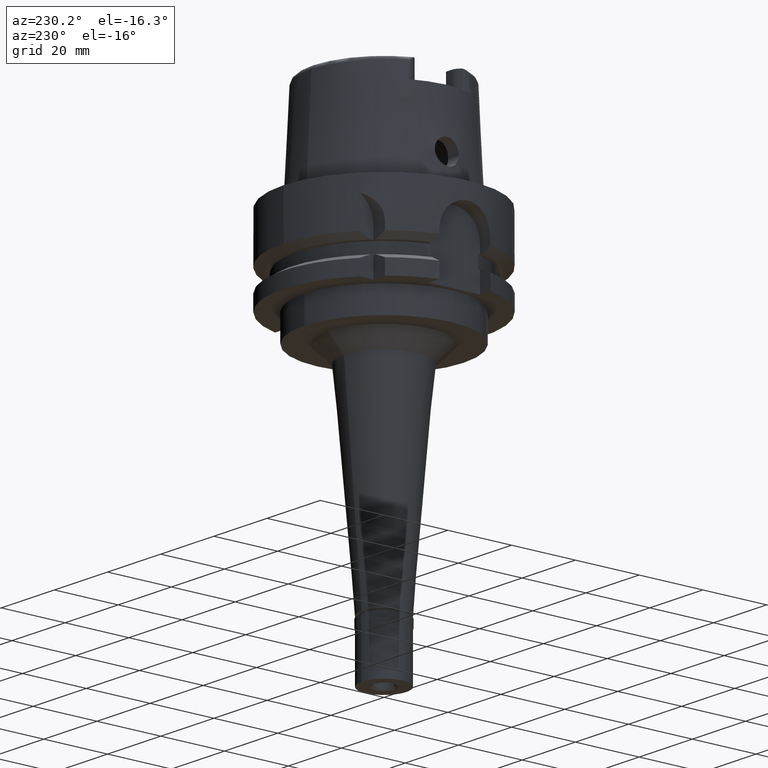
[diagram: clean part render]
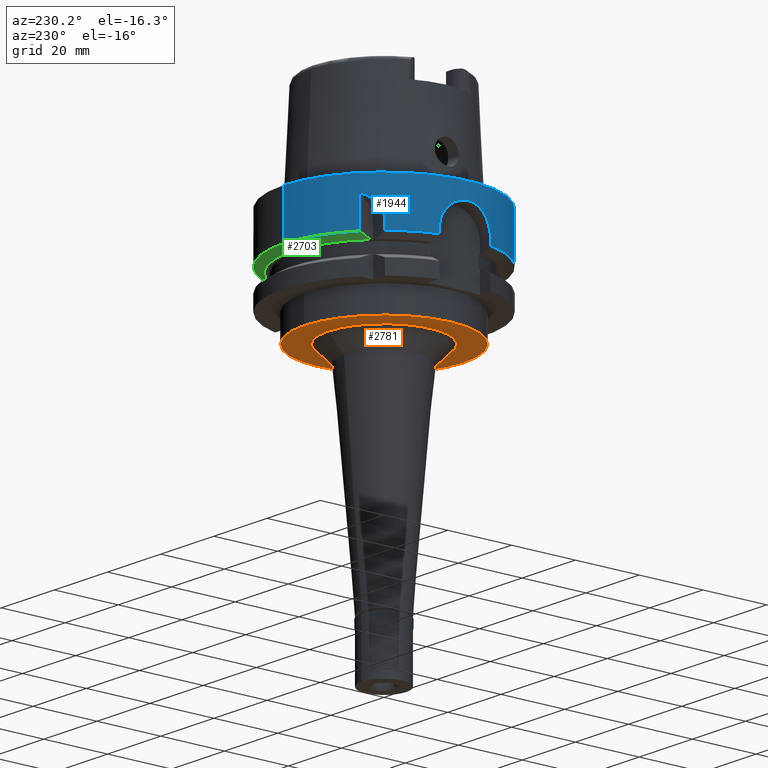
[diagram: same view with three faces highlighted in distinct colors, each labeled with its STEP entity id]
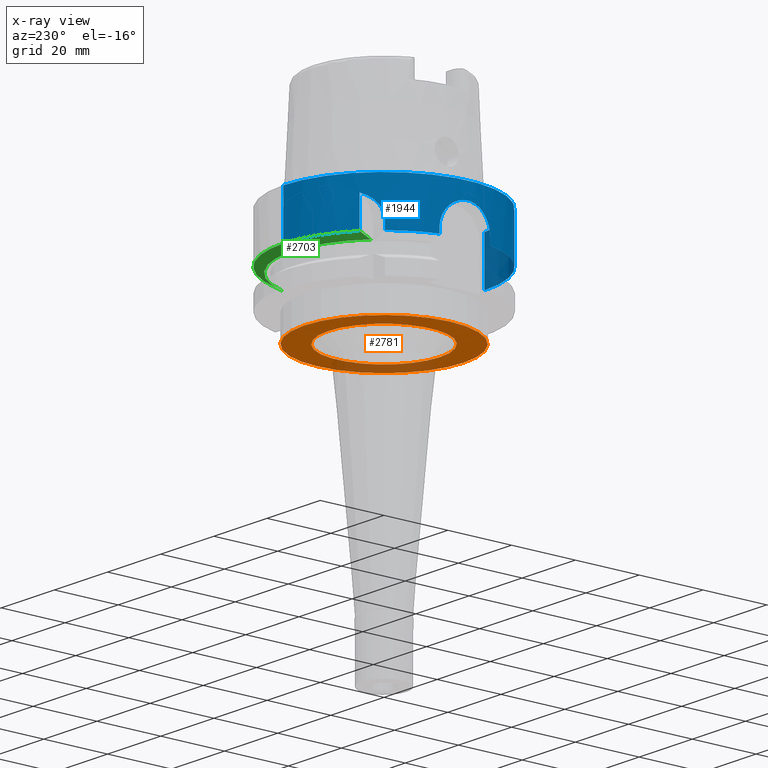
[diagram: x-ray of the same camera — body ghosted, the three highlighted faces saturated]
A machine part, auxiliary view with three faces highlighted in distinct colors.
The next image is the same camera in x-ray (body ghosted, the three faces saturated) — at least one of them is partly hidden behind the body in this view.
Their STEP definitions:

[orange] entity #2781 — the highlighted planar face has unit normal (0, 0, -1).
#331 = FACE_OUTER_BOUND ( 'NONE', #3352, .T. ) ;
#545 = AXIS2_PLACEMENT_3D ( 'NONE', #1594, #795, #689 ) ;
#689 = DIRECTION ( 'NONE',  ( 0.0000000000000000000, -1.000000000000000000, 0.0000000000000000000 ) ) ;
#795 = DIRECTION ( 'NONE',  ( 0.0000000000000000000, 0.0000000000000000000, -1.000000000000000000 ) ) ;
#1017 = CARTESIAN_POINT ( 'NONE',  ( 0.0000000000000000000, -17.53803240119000151, -34.00000000000000000 ) ) ;
#1162 = DIRECTION ( 'NONE',  ( 0.0000000000000000000, -1.000000000000000000, 0.0000000000000000000 ) ) ;
#1231 = DIRECTION ( 'NONE',  ( 0.0000000000000000000, 1.000000000000000000, 0.0000000000000000000 ) ) ;
#1403 = CARTESIAN_POINT ( 'NONE',  ( 0.0000000000000000000, 0.0000000000000000000, -34.00000000000000000 ) ) ;
#1435 = DIRECTION ( 'NONE',  ( 0.0000000000000000000, 1.000000000000000000, 0.0000000000000000000 ) ) ;
#1439 = CIRCLE ( 'NONE', #3635, 17.53803240119000151 ) ;
#1464 = VERTEX_POINT ( 'NONE', #2295 ) ;
#1515 = ORIENTED_EDGE ( 'NONE', *, *, #2282, .F. ) ;
#1540 = FACE_BOUND ( 'NONE', #2546, .T. ) ;
#1594 = CARTESIAN_POINT ( 'NONE',  ( 0.0000000000000000000, 0.0000000000000000000, -34.00000000000000000 ) ) ;
#1721 = DIRECTION ( 'NONE',  ( 0.0000000000000000000, 0.0000000000000000000, -1.000000000000000000 ) ) ;
#1782 = CARTESIAN_POINT ( 'NONE',  ( 0.0000000000000000000, 17.53803240119000151, -34.00000000000000000 ) ) ;
#1925 = ORIENTED_EDGE ( 'NONE', *, *, #4647, .F. ) ;
#2045 = CIRCLE ( 'NONE', #4223, 25.00000000000000000 ) ;
#2067 = CARTESIAN_POINT ( 'NONE',  ( 0.0000000000000000000, 0.0000000000000000000, -34.00000000000000000 ) ) ;
#2282 = EDGE_CURVE ( 'NONE', #1464, #2468, #2045, .T. ) ;
#2295 = CARTESIAN_POINT ( 'NONE',  ( 0.0000000000000000000, 25.00000000000000000, -34.00000000000000000 ) ) ;
#2328 = DIRECTION ( 'NONE',  ( 0.0000000000000000000, 0.0000000000000000000, -1.000000000000000000 ) ) ;
#2358 = VERTEX_POINT ( 'NONE', #1017 ) ;
#2468 = VERTEX_POINT ( 'NONE', #4573 ) ;
#2491 = AXIS2_PLACEMENT_3D ( 'NONE', #5259, #2328, #5369 ) ;
#2546 = EDGE_LOOP ( 'NONE', ( #2991, #3438 ) ) ;
#2549 = CIRCLE ( 'NONE', #545, 17.53803240119000151 ) ;
#2725 = AXIS2_PLACEMENT_3D ( 'NONE', #2067, #2987, #1162 ) ;
#2781 = ADVANCED_FACE ( 'NONE', ( #331, #1540 ), #5290, .T. ) ;
#2987 = DIRECTION ( 'NONE',  ( 0.0000000000000000000, 0.0000000000000000000, 1.000000000000000000 ) ) ;
#2991 = ORIENTED_EDGE ( 'NONE', *, *, #5299, .F. ) ;
#3352 = EDGE_LOOP ( 'NONE', ( #1515, #1925 ) ) ;
#3438 = ORIENTED_EDGE ( 'NONE', *, *, #5182, .F. ) ;
#3635 = AXIS2_PLACEMENT_3D ( 'NONE', #4977, #1721, #1231 ) ;
#3833 = DIRECTION ( 'NONE',  ( 0.0000000000000000000, 0.0000000000000000000, 1.000000000000000000 ) ) ;
#4223 = AXIS2_PLACEMENT_3D ( 'NONE', #1403, #3833, #1435 ) ;
#4573 = CARTESIAN_POINT ( 'NONE',  ( 0.0000000000000000000, -25.00000000000000000, -34.00000000000000000 ) ) ;
#4647 = EDGE_CURVE ( 'NONE', #2468, #1464, #5264, .T. ) ;
#4768 = VERTEX_POINT ( 'NONE', #1782 ) ;
#4977 = CARTESIAN_POINT ( 'NONE',  ( 0.0000000000000000000, 0.0000000000000000000, -34.00000000000000000 ) ) ;
#5182 = EDGE_CURVE ( 'NONE', #2358, #4768, #2549, .T. ) ;
#5259 = CARTESIAN_POINT ( 'NONE',  ( 0.0000000000000000000, 0.0000000000000000000, -34.00000000000000000 ) ) ;
#5264 = CIRCLE ( 'NONE', #2725, 25.00000000000000000 ) ;
#5290 = PLANE ( 'NONE',  #2491 ) ;
#5299 = EDGE_CURVE ( 'NONE', #4768, #2358, #1439, .T. ) ;
#5369 = DIRECTION ( 'NONE',  ( 0.0000000000000000000, -1.000000000000000000, 0.0000000000000000000 ) ) ;

[blue] entity #1944 — the highlighted cylindrical surface (partial cylindrical patch) has radius 31.5 mm, axis along (0, 0, -1).
#1 = CARTESIAN_POINT ( 'NONE',  ( -30.72483155825069545, -6.946269950277046412, -9.022706119297225769 ) ) ;
#26 = CARTESIAN_POINT ( 'NONE',  ( -24.23753001126512174, 20.11956907575455489, -10.72284691296700032 ) ) ;
#28 = CARTESIAN_POINT ( 'NONE',  ( -31.44943655644335223, -1.802450746067341569, -5.201311858322218207 ) ) ;
#54 = CARTESIAN_POINT ( 'NONE',  ( -20.00000000000000000, 24.33618704727999926, -5.000000000001000089 ) ) ;
#67 = EDGE_CURVE ( 'NONE', #3012, #508, #400, .T. ) ;
#78 = CARTESIAN_POINT ( 'NONE',  ( -23.93462317068893697, 20.47973321466801622, -9.360190639014227543 ) ) ;
#80 = CARTESIAN_POINT ( 'NONE',  ( -31.50002100011951711, 0.5183543065428579677, -4.999920277912010214 ) ) ;
#107 = VECTOR ( 'NONE', #2838, 999.9999999999998863 ) ;
#164 = VERTEX_POINT ( 'NONE', #5263 ) ;
#213 = CARTESIAN_POINT ( 'NONE',  ( -19.99999697632999940, 24.33618953219000147, -14.62251175975000095 ) ) ;
#316 = ORIENTED_EDGE ( 'NONE', *, *, #2440, .F. ) ;
#325 = CARTESIAN_POINT ( 'NONE',  ( 0.0000000000000000000, -31.50000000000000000, -5.210646728906999149E-14 ) ) ;
#377 = EDGE_CURVE ( 'NONE', #4577, #1029, #3528, .T. ) ;
#385 = CARTESIAN_POINT ( 'NONE',  ( -24.17234589818387747, 20.19776354161694343, -10.34020174442617090 ) ) ;
#387 = CARTESIAN_POINT ( 'NONE',  ( -31.21790416627743170, -4.212168745824432570, -6.193629089177133729 ) ) ;
#400 = LINE ( 'NONE', #1242, #107 ) ;
#418 = CARTESIAN_POINT ( 'NONE',  ( -23.53697928891532243, 20.93484618184170998, -8.357120637937539342 ) ) ;
#438 = CARTESIAN_POINT ( 'NONE',  ( -23.47125034811351796, 21.00840780329316004, -8.223145025955297172 ) ) ;
#439 = DIRECTION ( 'NONE',  ( 0.0000000000000000000, -1.000000000000000000, 0.0000000000000000000 ) ) ;
#440 = CARTESIAN_POINT ( 'NONE',  ( -30.66816234189937873, -7.192340305902117592, -9.487104355944319778 ) ) ;
#463 = CARTESIAN_POINT ( 'NONE',  ( -22.12366025526768354, 22.42305592483758758, -6.376051744762732731 ) ) ;
#468 = CARTESIAN_POINT ( 'NONE',  ( -31.30320154335445437, -3.523371583985439592, -5.812781820826476320 ) ) ;
#499 = B_SPLINE_CURVE_WITH_KNOTS ( 'NONE', 3,
 ( #3815, #4234, #1328, #3312, #26, #4204, #385, #3841, #876, #4180, #4597, #78, #1256, #2155, #1744, #418, #438, #2489, #3421, #1646, #2098, #3008, #3787, #3738, #2977, #5399, #3762, #1694, #1303, #463, #2127, #2538, #4642, #54 ),
 .UNSPECIFIED., .F., .F.,
 ( 4, 2, 2, 1, 2, 2, 2, 2, 1, 1, 2, 2, 2, 2, 1, 1, 1, 2, 2, 4 ),
 ( 0.0000000000000000000, 0.1250000000000013323, 0.1875000000000020539, 0.2187500000000027200, 0.2343750000000029976, 0.2500000000000032752, 0.3750000000000079936, 0.4375000000000103806, 0.4687500000000118239, 0.4843750000000132672, 0.4921875000000139888, 0.5000000000000146549, 0.6250000000000150990, 0.6875000000000156541, 0.7187500000000155431, 0.7343750000000155431, 0.7421875000000148770, 0.7460937500000146549, 0.7500000000000143219, 1.000000000000000000 ),
 .UNSPECIFIED. ) ;
#508 = VERTEX_POINT ( 'NONE', #213 ) ;
#510 = EDGE_CURVE ( 'NONE', #4577, #2782, #709, .T. ) ;
#677 = ORIENTED_EDGE ( 'NONE', *, *, #5293, .F. ) ;
#709 = LINE ( 'NONE', #325, #4827 ) ;
#726 = CARTESIAN_POINT ( 'NONE',  ( 0.0000000000000000000, -31.50000000000000000, -8.526512829120999020E-14 ) ) ;
#797 = CARTESIAN_POINT ( 'NONE',  ( -31.44964500274732799, 1.798614268532662708, -5.200476479076213465 ) ) ;
#798 = VERTEX_POINT ( 'NONE', #1135 ) ;
#805 = ORIENTED_EDGE ( 'NONE', *, *, #3286, .T. ) ;
#812 = DIRECTION ( 'NONE',  ( -0.7725773665802099233, 0.6349206349206079070, 0.0000000000000000000 ) ) ;
#826 = CARTESIAN_POINT ( 'NONE',  ( -30.66612576030093251, 7.202839950165904170, -9.479090569724965221 ) ) ;
#867 = EDGE_CURVE ( 'NONE', #5312, #3417, #3531, .T. ) ;
#876 = CARTESIAN_POINT ( 'NONE',  ( -24.12918344492736367, 20.24926407739598133, -10.12980356193080489 ) ) ;
#878 = CARTESIAN_POINT ( 'NONE',  ( -31.32955008595411073, 3.281533105401744255, -5.699304970571102302 ) ) ;
#903 = CARTESIAN_POINT ( 'NONE',  ( 0.0000000000000000000, 0.0000000000000000000, -8.526512829120999020E-14 ) ) ;
#912 = ORIENTED_EDGE ( 'NONE', *, *, #67, .F. ) ;
#935 = B_SPLINE_CURVE_WITH_KNOTS ( 'NONE', 3,
 ( #1531, #4865, #4889, #1139 ),
 .UNSPECIFIED., .F., .F.,
 ( 4, 4 ),
 ( 0.0000000000000000000, 1.000000000000000000 ),
 .UNSPECIFIED. ) ;
#1008 = CARTESIAN_POINT ( 'NONE',  ( 0.0000000000000000000, 0.0000000000000000000, -14.62250092523999889 ) ) ;
#1029 = VERTEX_POINT ( 'NONE', #4250 ) ;
#1135 = CARTESIAN_POINT ( 'NONE',  ( -30.46719547316000032, -8.000000000000000000, -13.00000000000000000 ) ) ;
#1139 = CARTESIAN_POINT ( 'NONE',  ( -24.33618704727999926, 20.00000000000000000, -12.11171390365999834 ) ) ;
#1210 = CARTESIAN_POINT ( 'NONE',  ( -31.49998946125950283, -0.2610890447922726842, -5.000040013349805079 ) ) ;
#1226 = CARTESIAN_POINT ( 'NONE',  ( -20.00000000000000000, 24.33618704727999926, -5.000000000001000089 ) ) ;
#1233 = CARTESIAN_POINT ( 'NONE',  ( -31.48717848547035558, 1.033599229551413146, -5.050029380088618680 ) ) ;
#1242 = CARTESIAN_POINT ( 'NONE',  ( -20.00000000000000000, 24.33618704727999926, -5.000000000001000089 ) ) ;
#1256 = CARTESIAN_POINT ( 'NONE',  ( -23.75778790263211704, 20.68403234665486679, -8.870118541061319917 ) ) ;
#1258 = CARTESIAN_POINT ( 'NONE',  ( -31.32914844624422912, -3.285491324276280434, -5.701012613330099121 ) ) ;
#1286 = CARTESIAN_POINT ( 'NONE',  ( -30.46719547316000032, 8.000000000000000000, -13.00000000000000000 ) ) ;
#1303 = CARTESIAN_POINT ( 'NONE',  ( -22.13991544953643498, 22.40700657288450515, -6.391700779309858582 ) ) ;
#1305 = CARTESIAN_POINT ( 'NONE',  ( -31.24776779275517313, 3.985172040082493261, -6.058247812276612798 ) ) ;
#1328 = CARTESIAN_POINT ( 'NONE',  ( -24.31739523089621002, 20.02302527965778722, -11.41233509681581815 ) ) ;
#1331 = CARTESIAN_POINT ( 'NONE',  ( -30.46719547316397936, -8.000000000001037392, -12.48366497254986562 ) ) ;
#1333 = DIRECTION ( 'NONE',  ( 0.0000000000000000000, 0.0000000000000000000, 1.000000000000000000 ) ) ;
#1365 = DIRECTION ( 'NONE',  ( 0.0000000000000000000, 0.0000000000000000000, 1.000000000000000000 ) ) ;
#1396 = EDGE_CURVE ( 'NONE', #2737, #798, #2669, .T. ) ;
#1405 = AXIS2_PLACEMENT_3D ( 'NONE', #1008, #1333, #3427 ) ;
#1409 = VECTOR ( 'NONE', #3166, 1000.000000000000000 ) ;
#1531 = CARTESIAN_POINT ( 'NONE',  ( -24.33618704727999926, 20.00000000000000000, -14.62250092523999889 ) ) ;
#1537 = CARTESIAN_POINT ( 'NONE',  ( 0.0000000000000000000, 0.0000000000000000000, 39.39999999999999858 ) ) ;
#1591 = CARTESIAN_POINT ( 'NONE',  ( 0.0000000000000000000, -31.50000000000000000, -14.62250092523999889 ) ) ;
#1621 = DIRECTION ( 'NONE',  ( 0.0000000000000000000, 0.0000000000000000000, -1.000000000000000000 ) ) ;
#1646 = CARTESIAN_POINT ( 'NONE',  ( -23.41400022917423129, 21.07216357215338931, -8.111009435841912918 ) ) ;
#1677 = EDGE_CURVE ( 'NONE', #1029, #4436, #5128, .T. ) ;
#1694 = CARTESIAN_POINT ( 'NONE',  ( -22.16423158446879071, 22.38297235167951271, -6.415234207678366829 ) ) ;
#1696 = CARTESIAN_POINT ( 'NONE',  ( -31.39729489286607134, -2.553889672865666594, -5.414060923261826197 ) ) ;
#1723 = CARTESIAN_POINT ( 'NONE',  ( -30.56960750178896546, 7.602056937491735056, -10.45357543552803925 ) ) ;
#1744 = CARTESIAN_POINT ( 'NONE',  ( -23.59051908677695053, 20.87444277641226620, -8.473838200759930217 ) ) ;
#1899 = ORIENTED_EDGE ( 'NONE', *, *, #867, .T. ) ;
#1910 = ORIENTED_EDGE ( 'NONE', *, *, #1396, .T. ) ;
#1944 = ADVANCED_FACE ( 'NONE', ( #3228 ), #3594, .T. ) ;
#1989 = CARTESIAN_POINT ( 'NONE',  ( -30.46719547317000121, -8.000000000001000089, -14.62250092523999889 ) ) ;
#2056 = CARTESIAN_POINT ( 'NONE',  ( -31.05604176497505620, -5.283827535505823292, -6.969819447039931504 ) ) ;
#2081 = CARTESIAN_POINT ( 'NONE',  ( -30.46719547316000032, 8.000000000000000000, -13.00000000000000000 ) ) ;
#2098 = CARTESIAN_POINT ( 'NONE',  ( -23.23284736681642215, 21.27324808141024448, -7.765153891517261542 ) ) ;
#2127 = CARTESIAN_POINT ( 'NONE',  ( -22.11655647624622034, 22.43006331217025462, -6.369243627175960931 ) ) ;
#2129 = CARTESIAN_POINT ( 'NONE',  ( -30.53176800461628915, 7.750603225394222306, -10.95042959222703338 ) ) ;
#2134 = LINE ( 'NONE', #1286, #4318 ) ;
#2155 = CARTESIAN_POINT ( 'NONE',  ( -23.69386629016121759, 20.75728041269172408, -8.709680028884937641 ) ) ;
#2157 = CARTESIAN_POINT ( 'NONE',  ( -31.12268002446700166, 4.865361700270676160, -6.643976467977301681 ) ) ;
#2218 = CARTESIAN_POINT ( 'NONE',  ( 0.0000000000000000000, 0.0000000000000000000, -14.62250092523999889 ) ) ;
#2339 = ORIENTED_EDGE ( 'NONE', *, *, #1677, .T. ) ;
#2373 = DIRECTION ( 'NONE',  ( 0.0000000000000000000, -2.672583210396999878E-14, -1.000000000000000000 ) ) ;
#2440 = EDGE_CURVE ( 'NONE', #2737, #3417, #2134, .T. ) ;
#2466 = CARTESIAN_POINT ( 'NONE',  ( -31.43386973690861907, -2.055313215503514535, -5.264061257064023280 ) ) ;
#2489 = CARTESIAN_POINT ( 'NONE',  ( -23.44238097849204294, 21.04058588167673349, -8.166206343342777174 ) ) ;
#2492 = CARTESIAN_POINT ( 'NONE',  ( -31.15549056210424084, 4.651323882732147474, -6.485818970015399643 ) ) ;
#2518 = CARTESIAN_POINT ( 'NONE',  ( -30.49308265053237932, 7.900923201063404733, -11.71820757452263528 ) ) ;
#2538 = CARTESIAN_POINT ( 'NONE',  ( -21.51738181457591281, 23.02037130602226611, -5.798477891085415337 ) ) ;
#2541 = CARTESIAN_POINT ( 'NONE',  ( -31.43402543387415449, 2.052934319775750804, -5.263432369681109613 ) ) ;
#2572 = CARTESIAN_POINT ( 'NONE',  ( -31.49676444061545055, -0.5197807615661762526, -5.012627701956126280 ) ) ;
#2669 = B_SPLINE_CURVE_WITH_KNOTS ( 'NONE', 3,
 ( #2081, #3397, #5401, #4599, #2518, #2129, #1723, #826, #4182, #3843, #3342, #4542, #5056, #2157, #2492, #5007, #1305, #2955, #878, #3791, #4645, #2541, #797, #1233, #80, #1210, #2572, #4237, #3315, #28, #2466, #1696, #4135, #1258, #468, #4208, #387, #3764, #2056, #3741, #4980, #4164, #1, #440, #4377, #3037, #4698, #5169, #5118, #3061, #1331, #2711 ),
 .UNSPECIFIED., .F., .F.,
 ( 4, 2, 2, 2, 2, 2, 2, 2, 2, 2, 2, 2, 2, 2, 2, 2, 2, 2, 2, 2, 2, 2, 2, 2, 2, 4 ),
 ( 0.0000000000000000000, 0.03124999999999986122, 0.06249999999999972244, 0.1249999999999996947, 0.1874999999999996669, 0.2499999999999996669, 0.2812499999999996114, 0.3124999999999996114, 0.3437499999999995559, 0.3749999999999995559, 0.4062499999999995004, 0.4374999999999995004, 0.4999999999999995559, 0.5312499999999995559, 0.5624999999999994449, 0.5937499999999994449, 0.6249999999999994449, 0.6562499999999994449, 0.6874999999999993339, 0.7499999999999994449, 0.8124999999999995559, 0.8437499999999997780, 0.8749999999999998890, 0.9062500000000000000, 0.9375000000000000000, 1.000000000000000000 ),
 .UNSPECIFIED. ) ;
#2696 = DIRECTION ( 'NONE',  ( 0.0000000000000000000, 2.672583210396999878E-14, -1.000000000000000000 ) ) ;
#2711 = CARTESIAN_POINT ( 'NONE',  ( -30.46719547316000032, -8.000000000000000000, -13.00000000000000000 ) ) ;
#2737 = VERTEX_POINT ( 'NONE', #4381 ) ;
#2751 = ORIENTED_EDGE ( 'NONE', *, *, #510, .F. ) ;
#2782 = VERTEX_POINT ( 'NONE', #1591 ) ;
#2838 = DIRECTION ( 'NONE',  ( 3.142283928301055950E-07, 2.582394104988045658E-07, -0.9999999999999173994 ) ) ;
#2839 = AXIS2_PLACEMENT_3D ( 'NONE', #1537, #4076, #4047 ) ;
#2845 = LINE ( 'NONE', #4402, #1409 ) ;
#2955 = CARTESIAN_POINT ( 'NONE',  ( -31.30344405296870391, 3.521218346206436589, -5.811727508870458969 ) ) ;
#2977 = CARTESIAN_POINT ( 'NONE',  ( -22.42284375811699704, 22.12406357859635264, -6.682017531165148405 ) ) ;
#3008 = CARTESIAN_POINT ( 'NONE',  ( -23.03959847984106091, 21.48321097298170912, -7.456987173025647841 ) ) ;
#3012 = VERTEX_POINT ( 'NONE', #1226 ) ;
#3037 = CARTESIAN_POINT ( 'NONE',  ( -30.59362501649805566, -7.502702388007870482, -10.21124545936433314 ) ) ;
#3061 = CARTESIAN_POINT ( 'NONE',  ( -30.48033687866831087, -7.950445081598332742, -11.97165006927280295 ) ) ;
#3070 = CARTESIAN_POINT ( 'NONE',  ( 0.0000000000000000000, 31.50000000000000000, -5.210646728906999149E-14 ) ) ;
#3071 = CIRCLE ( 'NONE', #3949, 31.50000000000000000 ) ;
#3138 = EDGE_CURVE ( 'NONE', #3185, #798, #2845, .T. ) ;
#3166 = DIRECTION ( 'NONE',  ( 1.610060873201991573E-08, -6.131326025772977676E-08, 0.9999999999999980016 ) ) ;
#3185 = VERTEX_POINT ( 'NONE', #1989 ) ;
#3228 = FACE_OUTER_BOUND ( 'NONE', #4686, .T. ) ;
#3286 = EDGE_CURVE ( 'NONE', #4436, #508, #3071, .T. ) ;
#3307 = EDGE_CURVE ( 'NONE', #3185, #2782, #5260, .T. ) ;
#3312 = CARTESIAN_POINT ( 'NONE',  ( -24.26101978174484941, 20.09122936993650654, -10.89447883098276826 ) ) ;
#3315 = CARTESIAN_POINT ( 'NONE',  ( -31.47463384889278259, -1.289694726626426924, -5.100313929552778625 ) ) ;
#3342 = CARTESIAN_POINT ( 'NONE',  ( -30.91892016395161491, 6.034600876831913929, -7.721352522286640152 ) ) ;
#3356 = DIRECTION ( 'NONE',  ( 0.0000000000000000000, 0.0000000000000000000, 1.000000000000000000 ) ) ;
#3397 = CARTESIAN_POINT ( 'NONE',  ( -30.46719547316398646, 8.000000000001030287, -12.74157926336300584 ) ) ;
#3417 = VERTEX_POINT ( 'NONE', #5038 ) ;
#3421 = CARTESIAN_POINT ( 'NONE',  ( -23.42297921573026542, 21.06218155782124057, -8.128354763160377416 ) ) ;
#3427 = DIRECTION ( 'NONE',  ( -0.9672125547036138915, -0.2539682539683034701, 0.0000000000000000000 ) ) ;
#3528 = CIRCLE ( 'NONE', #4206, 31.50000000000000000 ) ;
#3531 = CIRCLE ( 'NONE', #3709, 31.50000000000000711 ) ;
#3594 = CYLINDRICAL_SURFACE ( 'NONE', #2839, 31.50000000000000000 ) ;
#3668 = CARTESIAN_POINT ( 'NONE',  ( 0.0000000000000000000, 0.0000000000000000000, -14.62250092523999889 ) ) ;
#3709 = AXIS2_PLACEMENT_3D ( 'NONE', #3668, #3356, #812 ) ;
#3738 = CARTESIAN_POINT ( 'NONE',  ( -22.60190853636524366, 21.94162022581425475, -6.884003064757020951 ) ) ;
#3741 = CARTESIAN_POINT ( 'NONE',  ( -30.91845331494797477, -6.037036370954528941, -7.723995081564869913 ) ) ;
#3762 = CARTESIAN_POINT ( 'NONE',  ( -22.22050263734917408, 22.32717345797446029, -6.470564059372262200 ) ) ;
#3764 = CARTESIAN_POINT ( 'NONE',  ( -31.12358094119198526, -4.875688024248022501, -6.635255994722334627 ) ) ;
#3787 = CARTESIAN_POINT ( 'NONE',  ( -22.71559703636129157, 21.82381192348298171, -7.023643947048157088 ) ) ;
#3791 = CARTESIAN_POINT ( 'NONE',  ( -31.37649131484315745, 2.797313153675585973, -5.500458283513001589 ) ) ;
#3815 = CARTESIAN_POINT ( 'NONE',  ( -24.33618704727999926, 20.00000000000000000, -12.11171390365999834 ) ) ;
#3841 = CARTESIAN_POINT ( 'NONE',  ( -24.14680077278717008, 20.22825885413958602, -10.21384259444596943 ) ) ;
#3843 = CARTESIAN_POINT ( 'NONE',  ( -30.85060740613895902, 6.370253487044878149, -8.131620968415202100 ) ) ;
#3875 = ORIENTED_EDGE ( 'NONE', *, *, #4148, .F. ) ;
#3949 = AXIS2_PLACEMENT_3D ( 'NONE', #2218, #1365, #3974 ) ;
#3974 = DIRECTION ( 'NONE',  ( 0.0000000000000000000, 1.000000000000000000, 0.0000000000000000000 ) ) ;
#4047 = DIRECTION ( 'NONE',  ( 0.0000000000000000000, -1.000000000000000000, 0.0000000000000000000 ) ) ;
#4076 = DIRECTION ( 'NONE',  ( 0.0000000000000000000, 0.0000000000000000000, -1.000000000000000000 ) ) ;
#4135 = CARTESIAN_POINT ( 'NONE',  ( -31.37645213071182226, -2.797900516074784960, -5.500611171731700111 ) ) ;
#4148 = EDGE_CURVE ( 'NONE', #5312, #164, #935, .T. ) ;
#4161 = CARTESIAN_POINT ( 'NONE',  ( -24.33618704727999926, 20.00000000000000000, -14.62250092523999889 ) ) ;
#4164 = CARTESIAN_POINT ( 'NONE',  ( -30.75508703575619762, -6.811541188736834229, -8.796231481042967815 ) ) ;
#4180 = CARTESIAN_POINT ( 'NONE',  ( -24.12044499989402979, 20.25967145786761137, -10.08950342227793762 ) ) ;
#4182 = CARTESIAN_POINT ( 'NONE',  ( -30.72360566927290648, 6.957022459065740350, -9.015101376746406103 ) ) ;
#4204 = CARTESIAN_POINT ( 'NONE',  ( -24.19524842440160839, 20.17032472596019232, -10.46741439611894009 ) ) ;
#4206 = AXIS2_PLACEMENT_3D ( 'NONE', #903, #1621, #439 ) ;
#4208 = CARTESIAN_POINT ( 'NONE',  ( -31.24750097423799744, -3.987261848399222153, -6.059457209213571893 ) ) ;
#4234 = CARTESIAN_POINT ( 'NONE',  ( -24.33618704727999926, 19.99999999999999289, -11.76152757850582020 ) ) ;
#4237 = CARTESIAN_POINT ( 'NONE',  ( -31.48405320500070914, -1.034763766469264823, -5.062898632756230199 ) ) ;
#4250 = CARTESIAN_POINT ( 'NONE',  ( 0.0000000000000000000, 31.50000000000000000, -8.526512829120999020E-14 ) ) ;
#4261 = ORIENTED_EDGE ( 'NONE', *, *, #3138, .F. ) ;
#4318 = VECTOR ( 'NONE', #5091, 1000.000000000000227 ) ;
#4377 = CARTESIAN_POINT ( 'NONE',  ( -30.64164178488305623, -7.304123732524215207, -9.726106606234266039 ) ) ;
#4381 = CARTESIAN_POINT ( 'NONE',  ( -30.46719547316000032, 8.000000000000000000, -13.00000000000000000 ) ) ;
#4402 = CARTESIAN_POINT ( 'NONE',  ( -30.46719549928000248, -7.999999900519000562, -14.62250182834000078 ) ) ;
#4436 = VERTEX_POINT ( 'NONE', #5158 ) ;
#4542 = CARTESIAN_POINT ( 'NONE',  ( -31.02189221075997949, 5.470713995984237243, -7.157074766669640375 ) ) ;
#4551 = ORIENTED_EDGE ( 'NONE', *, *, #3307, .T. ) ;
#4577 = VERTEX_POINT ( 'NONE', #726 ) ;
#4597 = CARTESIAN_POINT ( 'NONE',  ( -24.03260725691901101, 20.36414574619773887, -9.698607033049338355 ) ) ;
#4599 = CARTESIAN_POINT ( 'NONE',  ( -30.48345361348941651, 7.937865946788120297, -11.97165288688787932 ) ) ;
#4642 = CARTESIAN_POINT ( 'NONE',  ( -20.81493567973317127, 23.66645544292964942, -5.345032345243412308 ) ) ;
#4645 = CARTESIAN_POINT ( 'NONE',  ( -31.39748338111713366, 2.551574343661836775, -5.413283763335003052 ) ) ;
#4686 = EDGE_LOOP ( 'NONE', ( #677, #3875, #1899, #316, #1910, #4261, #4551, #2751, #4737, #2339, #805, #912 ) ) ;
#4698 = CARTESIAN_POINT ( 'NONE',  ( -30.57210707441604569, -7.589610296801555300, -10.45713677742764602 ) ) ;
#4737 = ORIENTED_EDGE ( 'NONE', *, *, #377, .T. ) ;
#4827 = VECTOR ( 'NONE', #2373, 1000.000000000000000 ) ;
#4865 = CARTESIAN_POINT ( 'NONE',  ( -24.33617949829029214, 20.00000000000000000, -13.78557191796221382 ) ) ;
#4889 = CARTESIAN_POINT ( 'NONE',  ( -24.33618327278327342, 20.00000000000000000, -12.94864291081110430 ) ) ;
#4980 = CARTESIAN_POINT ( 'NONE',  ( -30.85024234847739066, -6.372003987083053822, -8.133981006488067322 ) ) ;
#5007 = CARTESIAN_POINT ( 'NONE',  ( -31.21802749794387211, 4.211195218113426897, -6.193066104505601466 ) ) ;
#5038 = CARTESIAN_POINT ( 'NONE',  ( -30.46719534865999890, 8.000000474160000152, -14.62249662070999889 ) ) ;
#5056 = CARTESIAN_POINT ( 'NONE',  ( -31.05596336676895319, 5.274475873650684044, -6.979218072848905052 ) ) ;
#5091 = DIRECTION ( 'NONE',  ( 7.673476821606652173E-08, 2.922408964520865734E-07, -0.9999999999999542588 ) ) ;
#5118 = CARTESIAN_POINT ( 'NONE',  ( -30.51867068507138114, -7.801497800058623255, -11.21010790061680318 ) ) ;
#5128 = LINE ( 'NONE', #3070, #5282 ) ;
#5158 = CARTESIAN_POINT ( 'NONE',  ( 0.0000000000000000000, 31.50000000000000000, -14.62250092523999889 ) ) ;
#5169 = CARTESIAN_POINT ( 'NONE',  ( -30.53468051281202023, -7.738811369155756736, -10.95556319655081445 ) ) ;
#5260 = CIRCLE ( 'NONE', #1405, 31.50000000000000000 ) ;
#5263 = CARTESIAN_POINT ( 'NONE',  ( -24.33618704727999926, 20.00000000000000000, -12.11171390365999834 ) ) ;
#5282 = VECTOR ( 'NONE', #2696, 1000.000000000000000 ) ;
#5293 = EDGE_CURVE ( 'NONE', #164, #3012, #499, .T. ) ;
#5312 = VERTEX_POINT ( 'NONE', #4161 ) ;
#5399 = CARTESIAN_POINT ( 'NONE',  ( -22.33117836192932515, 22.21671798119595564, -6.582892736827408164 ) ) ;
#5401 = CARTESIAN_POINT ( 'NONE',  ( -30.47046534385353311, 7.987577963560681837, -12.48422569341317967 ) ) ;

[green] entity #2703 — the highlighted conical surface has half-angle 60 deg.
#121 = ORIENTED_EDGE ( 'NONE', *, *, #3286, .F. ) ;
#193 = FACE_OUTER_BOUND ( 'NONE', #5035, .T. ) ;
#213 = CARTESIAN_POINT ( 'NONE',  ( -19.99999697632999940, 24.33618953219000147, -14.62251175975000095 ) ) ;
#508 = VERTEX_POINT ( 'NONE', #213 ) ;
#512 = EDGE_CURVE ( 'NONE', #3214, #3381, #2505, .T. ) ;
#593 = CARTESIAN_POINT ( 'NONE',  ( 0.0000000000000000000, 0.0000000000000000000, -16.12500000000000000 ) ) ;
#627 = CARTESIAN_POINT ( 'NONE',  ( 28.33125883899881003, 8.999998543017845520, -15.64719075774906010 ) ) ;
#629 = ORIENTED_EDGE ( 'NONE', *, *, #2236, .F. ) ;
#705 = CARTESIAN_POINT ( 'NONE',  ( 30.18691773962000013, 8.999999854531999688, -14.62250209852999916 ) ) ;
#913 = AXIS2_PLACEMENT_3D ( 'NONE', #3669, #1021, #3199 ) ;
#1021 = DIRECTION ( 'NONE',  ( 0.0000000000000000000, 0.0000000000000000000, 1.000000000000000000 ) ) ;
#1150 = CARTESIAN_POINT ( 'NONE',  ( -20.00000000000000000, 23.12606476112103238, -15.16228535714003200 ) ) ;
#1217 = VERTEX_POINT ( 'NONE', #3235 ) ;
#1315 = B_SPLINE_CURVE_WITH_KNOTS ( 'NONE', 3,
 ( #2025, #1150, #1999, #2433 ),
 .UNSPECIFIED., .F., .F.,
 ( 4, 4 ),
 ( 0.0000000000000000000, 1.000000000000000000 ),
 .UNSPECIFIED. ) ;
#1349 = CONICAL_SURFACE ( 'NONE', #3641, 30.19879763209999979, 1.047197551196400456 ) ;
#1365 = DIRECTION ( 'NONE',  ( 0.0000000000000000000, 0.0000000000000000000, 1.000000000000000000 ) ) ;
#1368 = CARTESIAN_POINT ( 'NONE',  ( 0.0000000000000000000, 0.0000000000000000000, -15.37375046262000033 ) ) ;
#1463 = DIRECTION ( 'NONE',  ( 0.0000000000000000000, 0.0000000000000000000, 1.000000000000000000 ) ) ;
#1528 = CIRCLE ( 'NONE', #1870, 28.89759526419000224 ) ;
#1655 = ORIENTED_EDGE ( 'NONE', *, *, #5191, .F. ) ;
#1870 = AXIS2_PLACEMENT_3D ( 'NONE', #593, #1463, #3552 ) ;
#1999 = CARTESIAN_POINT ( 'NONE',  ( -20.00000000000000000, 21.96682921029103497, -15.66311477055670132 ) ) ;
#2025 = CARTESIAN_POINT ( 'NONE',  ( -19.99999697632999940, 24.33618953219000147, -14.62251175975000095 ) ) ;
#2218 = CARTESIAN_POINT ( 'NONE',  ( 0.0000000000000000000, 0.0000000000000000000, -14.62250092523999889 ) ) ;
#2236 = EDGE_CURVE ( 'NONE', #3214, #4436, #3805, .T. ) ;
#2370 = EDGE_CURVE ( 'NONE', #3381, #1217, #1528, .T. ) ;
#2433 = CARTESIAN_POINT ( 'NONE',  ( -19.99998591006000126, 20.85848287970000214, -16.12500000000000000 ) ) ;
#2505 = B_SPLINE_CURVE_WITH_KNOTS ( 'NONE', 3,
 ( #3591, #3567, #627, #2796 ),
 .UNSPECIFIED., .F., .F.,
 ( 4, 4 ),
 ( 0.0000000000000000000, 1.000000000000000000 ),
 .UNSPECIFIED. ) ;
#2599 = CARTESIAN_POINT ( 'NONE',  ( 27.46036354012000302, 8.999999272439000109, -16.12500000000000000 ) ) ;
#2703 = ADVANCED_FACE ( 'NONE', ( #193 ), #1349, .T. ) ;
#2796 = CARTESIAN_POINT ( 'NONE',  ( 27.46036354012000302, 8.999999272439000109, -16.12500000000000000 ) ) ;
#3071 = CIRCLE ( 'NONE', #3949, 31.50000000000000000 ) ;
#3199 = DIRECTION ( 'NONE',  ( 0.9583148474999051425, 0.2857142857143015191, 0.0000000000000000000 ) ) ;
#3214 = VERTEX_POINT ( 'NONE', #705 ) ;
#3235 = CARTESIAN_POINT ( 'NONE',  ( -19.99998591006000126, 20.85848287970000214, -16.12500000000000000 ) ) ;
#3286 = EDGE_CURVE ( 'NONE', #4436, #508, #3071, .T. ) ;
#3381 = VERTEX_POINT ( 'NONE', #2599 ) ;
#3491 = ORIENTED_EDGE ( 'NONE', *, *, #512, .T. ) ;
#3552 = DIRECTION ( 'NONE',  ( 0.0000000000000000000, 1.000000000000000000, 0.0000000000000000000 ) ) ;
#3567 = CARTESIAN_POINT ( 'NONE',  ( 29.24010044468122871, 8.999999709189729913, -15.14635918071179610 ) ) ;
#3591 = CARTESIAN_POINT ( 'NONE',  ( 30.18691773962000013, 8.999999854531999688, -14.62250209852999916 ) ) ;
#3641 = AXIS2_PLACEMENT_3D ( 'NONE', #1368, #4264, #4295 ) ;
#3669 = CARTESIAN_POINT ( 'NONE',  ( 0.0000000000000000000, 0.0000000000000000000, -14.62250092523999889 ) ) ;
#3805 = CIRCLE ( 'NONE', #913, 31.49999999999999645 ) ;
#3908 = ORIENTED_EDGE ( 'NONE', *, *, #2370, .T. ) ;
#3949 = AXIS2_PLACEMENT_3D ( 'NONE', #2218, #1365, #3974 ) ;
#3974 = DIRECTION ( 'NONE',  ( 0.0000000000000000000, 1.000000000000000000, 0.0000000000000000000 ) ) ;
#4264 = DIRECTION ( 'NONE',  ( 0.0000000000000000000, 0.0000000000000000000, 1.000000000000000000 ) ) ;
#4295 = DIRECTION ( 'NONE',  ( 0.0000000000000000000, 1.000000000000000000, 0.0000000000000000000 ) ) ;
#4436 = VERTEX_POINT ( 'NONE', #5158 ) ;
#5035 = EDGE_LOOP ( 'NONE', ( #121, #629, #3491, #3908, #1655 ) ) ;
#5158 = CARTESIAN_POINT ( 'NONE',  ( 0.0000000000000000000, 31.50000000000000000, -14.62250092523999889 ) ) ;
#5191 = EDGE_CURVE ( 'NONE', #508, #1217, #1315, .T. ) ;